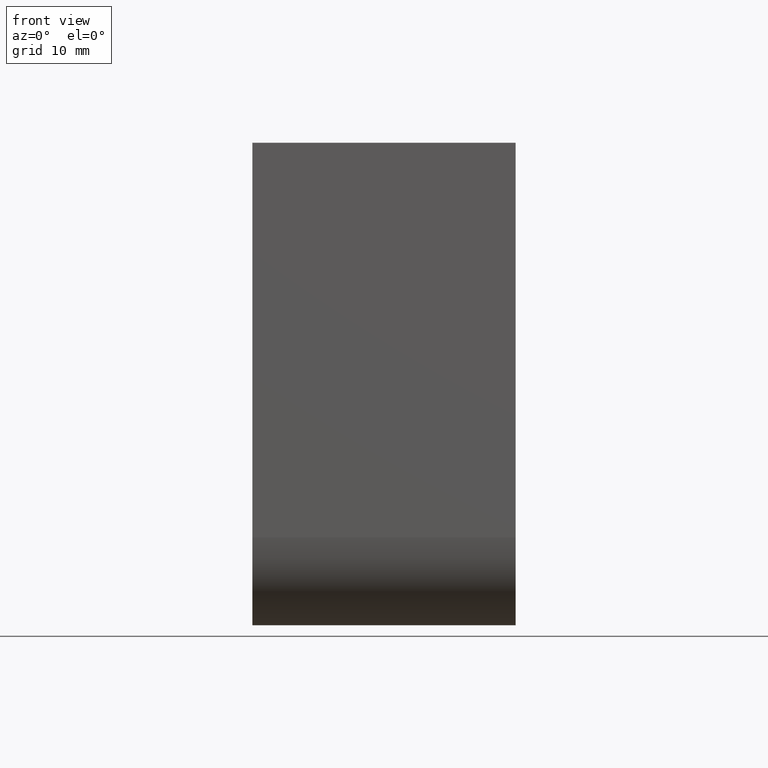
[diagram: clean part render]
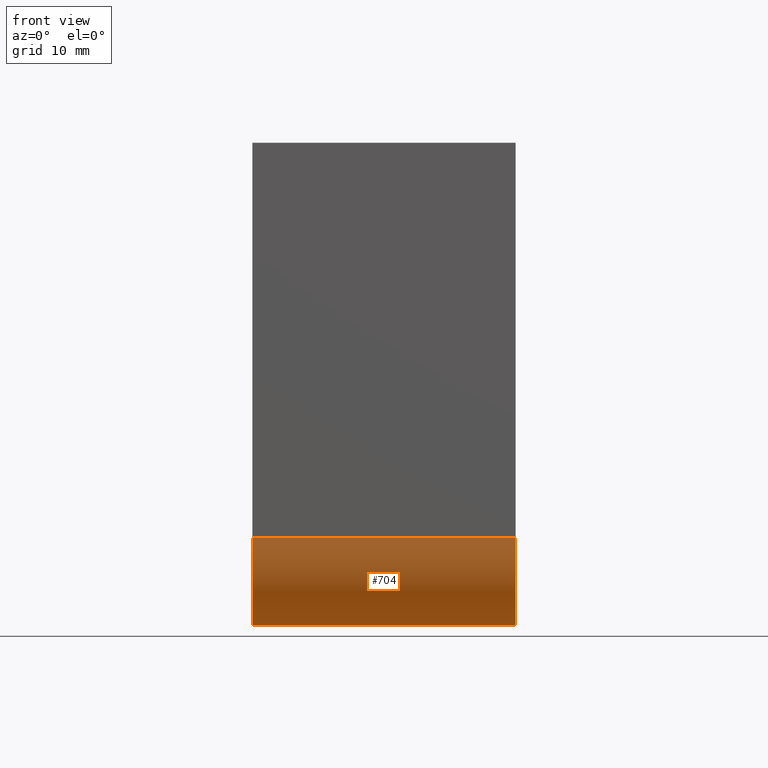
[diagram: same view with one face highlighted and labeled with its STEP entity id]
A machine part, front view. The second image highlights one B-rep face of the part: STEP entity #704.
In plain terms, the highlighted cylindrical surface (partial cylindrical patch) has radius 10 mm, axis along (-1, -0, -0).
Its self-contained STEP definition (entity closure, byte-faithful):
#349 = DIRECTION ( 'NONE',  ( 0.0000000000000000000, 0.0000000000000000000, -1.000000000000000000 ) ) ;
#669 = CARTESIAN_POINT ( 'NONE',  ( 15.00000000000000000, 10.00000000000000000, -45.00000000000000000 ) ) ;
#704 = ADVANCED_FACE ( 'NONE', ( #768 ), #1672, .T. ) ;
#768 = FACE_OUTER_BOUND ( 'NONE', #2798, .T. ) ;
#1021 = DIRECTION ( 'NONE',  ( -1.000000000000000000, 0.0000000000000000000, -0.0000000000000000000 ) ) ;
#1147 = DIRECTION ( 'NONE',  ( 0.0000000000000000000, 0.0000000000000000000, -1.000000000000000000 ) ) ;
#1263 = AXIS2_PLACEMENT_3D ( 'NONE', #2943, #1021, #349 ) ;
#1292 = ORIENTED_EDGE ( 'NONE', *, *, #2099, .F. ) ;
#1672 = CYLINDRICAL_SURFACE ( 'NONE', #3497, 9.999999999999994700 ) ;
#1934 = DIRECTION ( 'NONE',  ( 0.0000000000000000000, 0.0000000000000000000, 1.000000000000000000 ) ) ;
#1976 = LINE ( 'NONE', #5459, #7461 ) ;
#2099 = EDGE_CURVE ( 'NONE', #8177, #7103, #4908, .T. ) ;
#2798 = EDGE_LOOP ( 'NONE', ( #1292, #3778, #7490, #4163 ) ) ;
#2809 = DIRECTION ( 'NONE',  ( -1.000000000000000000, -0.0000000000000000000, -0.0000000000000000000 ) ) ;
#2943 = CARTESIAN_POINT ( 'NONE',  ( -15.00000000000000000, 10.00000000000000000, -45.00000000000000000 ) ) ;
#3062 = VECTOR ( 'NONE', #7596, 1000.000000000000000 ) ;
#3314 = EDGE_CURVE ( 'NONE', #4781, #6796, #4578, .T. ) ;
#3377 = EDGE_CURVE ( 'NONE', #4781, #8177, #8319, .T. ) ;
#3497 = AXIS2_PLACEMENT_3D ( 'NONE', #669, #4535, #1934 ) ;
#3778 = ORIENTED_EDGE ( 'NONE', *, *, #3377, .F. ) ;
#4163 = ORIENTED_EDGE ( 'NONE', *, *, #8346, .T. ) ;
#4535 = DIRECTION ( 'NONE',  ( -1.000000000000000000, -0.0000000000000000000, -0.0000000000000000000 ) ) ;
#4578 = CIRCLE ( 'NONE', #8156, 9.999999999999994700 ) ;
#4781 = VERTEX_POINT ( 'NONE', #7442 ) ;
#4908 = CIRCLE ( 'NONE', #1263, 9.999999999999994700 ) ;
#4999 = DIRECTION ( 'NONE',  ( -1.000000000000000000, 0.0000000000000000000, -0.0000000000000000000 ) ) ;
#5127 = CARTESIAN_POINT ( 'NONE',  ( 15.00000000000000000, 0.0000000000000000000, -45.00000000000000000 ) ) ;
#5459 = CARTESIAN_POINT ( 'NONE',  ( 15.00000000000000000, 0.0000000000000000000, -45.00000000000000000 ) ) ;
#6097 = CARTESIAN_POINT ( 'NONE',  ( -15.00000000000000000, 0.0000000000000000000, -45.00000000000000000 ) ) ;
#6308 = CARTESIAN_POINT ( 'NONE',  ( 15.00000000000000000, 10.00000000000000000, -54.99999999999999300 ) ) ;
#6796 = VERTEX_POINT ( 'NONE', #5127 ) ;
#7103 = VERTEX_POINT ( 'NONE', #6097 ) ;
#7320 = CARTESIAN_POINT ( 'NONE',  ( -15.00000000000000000, 10.00000000000000000, -54.99999999999999300 ) ) ;
#7442 = CARTESIAN_POINT ( 'NONE',  ( 15.00000000000000000, 10.00000000000000000, -54.99999999999999300 ) ) ;
#7461 = VECTOR ( 'NONE', #2809, 1000.000000000000000 ) ;
#7490 = ORIENTED_EDGE ( 'NONE', *, *, #3314, .T. ) ;
#7596 = DIRECTION ( 'NONE',  ( -1.000000000000000000, -0.0000000000000000000, -0.0000000000000000000 ) ) ;
#8156 = AXIS2_PLACEMENT_3D ( 'NONE', #8187, #4999, #1147 ) ;
#8177 = VERTEX_POINT ( 'NONE', #7320 ) ;
#8187 = CARTESIAN_POINT ( 'NONE',  ( 15.00000000000000000, 10.00000000000000000, -45.00000000000000000 ) ) ;
#8319 = LINE ( 'NONE', #6308, #3062 ) ;
#8346 = EDGE_CURVE ( 'NONE', #6796, #7103, #1976, .T. ) ;